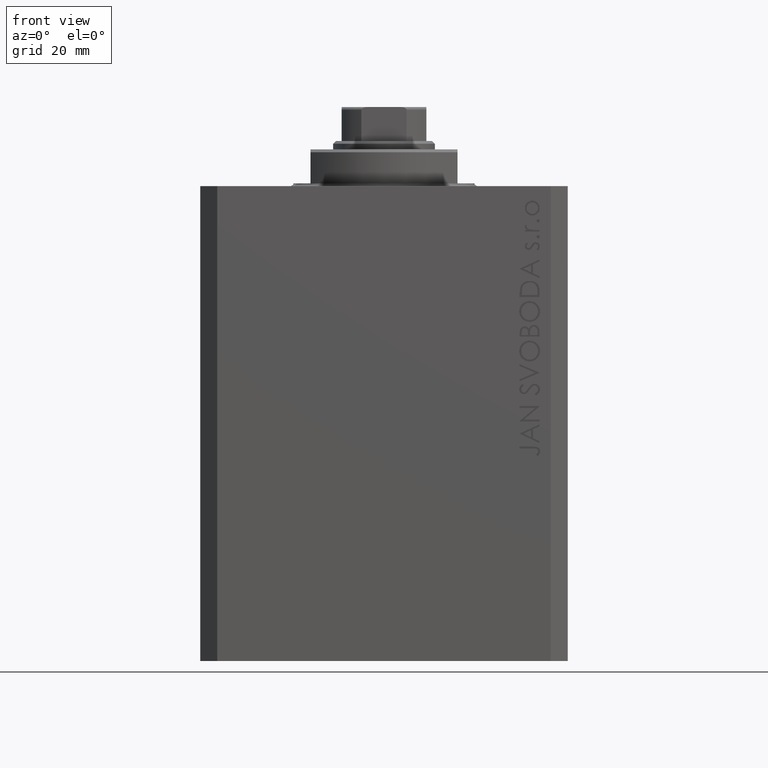
[diagram: clean part render]
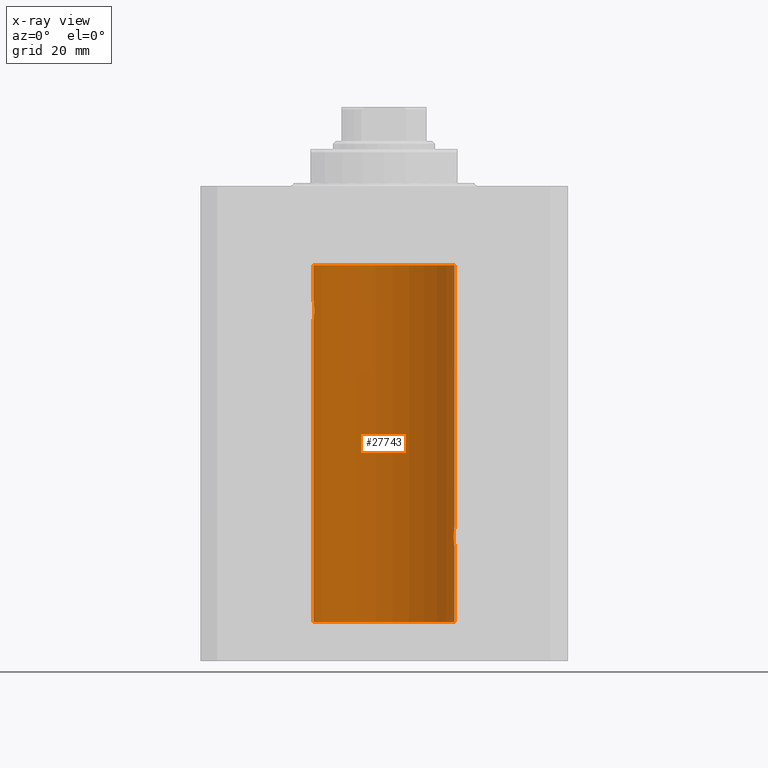
[diagram: x-ray — body ghosted, one internal face saturated and labeled with its STEP entity id]
A machine part, front view, then the same camera in x-ray: the body is ghosted and one INTERNAL B-rep face — a face not visible from any outside direction — is saturated and labeled: STEP entity #27743.
In plain terms, the highlighted cylindrical surface (partial cylindrical patch) has radius 12.5 mm, axis along (0, 0, 1).
Its self-contained STEP definition (entity closure, byte-faithful):
#355 = CARTESIAN_POINT ( 'NONE',  ( 0.000000000000000000, 0.000000000000000000, -77.09999999999999432 ) ) ;
#494 = CARTESIAN_POINT ( 'NONE',  ( 12.50000000000000000, -7.266276684081261841E-23, -60.00000000000000711 ) ) ;
#1062 = DIRECTION ( 'NONE',  ( 1.000000000000000000, 0.000000000000000000, 0.000000000000000000 ) ) ;
#1271 = CARTESIAN_POINT ( 'NONE',  ( -12.50000000000000000, 1.530808498934191521E-15, -77.09999999999999432 ) ) ;
#1353 = VECTOR ( 'NONE', #44842, 1000.000000000000000 ) ;
#1673 = ORIENTED_EDGE ( 'NONE', *, *, #29742, .T. ) ;
#2036 = CARTESIAN_POINT ( 'NONE',  ( -12.50000000000000000, 1.530808426276628993E-15, -23.99999999999999645 ) ) ;
#2439 = FACE_OUTER_BOUND ( 'NONE', #41216, .T. ) ;
#2846 = CARTESIAN_POINT ( 'NONE',  ( -12.35517291625592051, 1.897967064543089721, -22.64415233770293412 ) ) ;
#3084 = CARTESIAN_POINT ( 'NONE',  ( -12.48394649977302073, 0.6448065707253024526, -23.89773031393659153 ) ) ;
#3212 = CARTESIAN_POINT ( 'NONE',  ( 12.49789833780794446, 0.2625555164371027317, -63.98698170822147802 ) ) ;
#3450 = CARTESIAN_POINT ( 'NONE',  ( 12.43016561391612562, 1.322713721413883547, -63.50578877836701963 ) ) ;
#3692 = AXIS2_PLACEMENT_3D ( 'NONE', #355, #4176, #1062 ) ;
#4027 = VERTEX_POINT ( 'NONE', #38344 ) ;
#4176 = DIRECTION ( 'NONE',  ( 0.000000000000000000, 0.000000000000000000, 1.000000000000000000 ) ) ;
#4291 = VECTOR ( 'NONE', #46701, 1000.000000000000000 ) ;
#4625 = CARTESIAN_POINT ( 'NONE',  ( 12.50000000000000000, 0.000000000000000000, -77.09999999999999432 ) ) ;
#4627 = DIRECTION ( 'NONE',  ( -0.000000000000000000, -0.000000000000000000, 1.000000000000000000 ) ) ;
#6433 = CARTESIAN_POINT ( 'NONE',  ( -12.37764291807175354, 1.747608771958140794, -20.99316879552500481 ) ) ;
#6767 = B_SPLINE_CURVE_WITH_KNOTS ( 'NONE', 3,
 ( #8125, #18872, #33422, #19114, #7417, #15287, #21960, #11954, #26505, #32694, #29602, #7172, #33180, #29354, #29840, #36257, #26269, #494 ),
 .UNSPECIFIED., .F., .F.,
 ( 4, 2, 2, 2, 2, 2, 2, 2, 4 ),
 ( 0.003132244164174477138, 0.003523586189974253335, 0.003914928215774029531, 0.004306270241573805294, 0.004697612267373581924, 0.005088954293173358553, 0.005480296318973134316, 0.005871638344772910079, 0.006262980370572685841 ),
 .UNSPECIFIED. ) ;
#6803 = CARTESIAN_POINT ( 'NONE',  ( 12.50000000000000000, 1.905024688046704159E-15, -64.00000000000001421 ) ) ;
#6861 = CARTESIAN_POINT ( 'NONE',  ( 12.50000000000000000, 0.000000000000000000, -77.09999999999999432 ) ) ;
#6909 = CARTESIAN_POINT ( 'NONE',  ( -12.39864157855465088, 1.590288205413973532, -23.21980790594580313 ) ) ;
#7075 = ORIENTED_EDGE ( 'NONE', *, *, #45853, .F. ) ;
#7154 = CARTESIAN_POINT ( 'NONE',  ( -12.50000000000000533, 0.1306394121199390135, -24.00000000000000711 ) ) ;
#7172 = CARTESIAN_POINT ( 'NONE',  ( 12.46011632531799584, 1.003644408234891205, -60.26516799687671977 ) ) ;
#7417 = CARTESIAN_POINT ( 'NONE',  ( 12.35520276972935250, 1.897773362058245761, -61.35528278634336630 ) ) ;
#8125 = CARTESIAN_POINT ( 'NONE',  ( 12.33896267925302581, 2.000000000000254907, -62.00000000000000711 ) ) ;
#10111 = ORIENTED_EDGE ( 'NONE', *, *, #14505, .T. ) ;
#10259 = CARTESIAN_POINT ( 'NONE',  ( -12.46009879577771606, 1.003863686549169465, -23.73470742397611843 ) ) ;
#10954 = CARTESIAN_POINT ( 'NONE',  ( 12.50000000000000000, 1.905024688046704159E-15, -64.00000000000001421 ) ) ;
#11954 = CARTESIAN_POINT ( 'NONE',  ( 12.39867611624532451, 1.590019252152836682, -60.77984495929612052 ) ) ;
#12930 = CARTESIAN_POINT ( 'NONE',  ( -12.50000000000000000, 1.530808498934191521E-15, -13.99999999999999822 ) ) ;
#13605 = CARTESIAN_POINT ( 'NONE',  ( -12.46903010196599304, 0.8876934327478135378, -20.20300788371381984 ) ) ;
#13779 = LINE ( 'NONE', #6861, #46972 ) ;
#13821 = EDGE_CURVE ( 'NONE', #14287, #32121, #21653, .T. ) ;
#13828 = CARTESIAN_POINT ( 'NONE',  ( -12.44076681548080288, 1.220297236145718944, -23.58991408680628155 ) ) ;
#13957 = CARTESIAN_POINT ( 'NONE',  ( 12.46019522898365217, 1.002712894177338887, -63.73540896027601832 ) ) ;
#14064 = CARTESIAN_POINT ( 'NONE',  ( -12.48390768591463207, 0.6455696738844916016, -20.10252270298193977 ) ) ;
#14287 = VERTEX_POINT ( 'NONE', #22251 ) ;
#14505 = EDGE_CURVE ( 'NONE', #45910, #33460, #13779, .T. ) ;
#14604 = ORIENTED_EDGE ( 'NONE', *, *, #18407, .T. ) ;
#15287 = CARTESIAN_POINT ( 'NONE',  ( 12.37021546997940291, 1.797317011867410663, -61.11295119741077997 ) ) ;
#17642 = CARTESIAN_POINT ( 'NONE',  ( -12.48983485452574982, 0.5201193324741355539, -23.93561774521849372 ) ) ;
#17773 = CARTESIAN_POINT ( 'NONE',  ( 12.46901623405144655, 0.8878913781257908866, -63.79689651717551868 ) ) ;
#18016 = CARTESIAN_POINT ( 'NONE',  ( 12.33896267925302581, 2.000000000000254907, -62.00000000000000711 ) ) ;
#18084 = CARTESIAN_POINT ( 'NONE',  ( -12.50000000000000000, 1.530808498934191521E-15, -77.09999999999999432 ) ) ;
#18407 = EDGE_CURVE ( 'NONE', #43610, #43287, #22902, .T. ) ;
#18872 = CARTESIAN_POINT ( 'NONE',  ( 12.33896267925302759, 2.000000000000254907, -61.86934705949918367 ) ) ;
#19114 = CARTESIAN_POINT ( 'NONE',  ( 12.34924836377099844, 1.935649219704940194, -61.48002062127162048 ) ) ;
#19138 = VERTEX_POINT ( 'NONE', #41490 ) ;
#19176 = CIRCLE ( 'NONE', #45806, 12.50000000000000000 ) ;
#19831 = EDGE_CURVE ( 'NONE', #43610, #14287, #39470, .T. ) ;
#20243 = CARTESIAN_POINT ( 'NONE',  ( 12.48989642018887558, 0.5185418732824270682, -63.93601292187606333 ) ) ;
#20977 = CARTESIAN_POINT ( 'NONE',  ( -12.34781876294798053, 1.947190906025043633, -21.47436412829509678 ) ) ;
#21583 = CARTESIAN_POINT ( 'NONE',  ( 12.48390005916863110, 0.6457215011736545662, -63.89742771554267620 ) ) ;
#21653 = LINE ( 'NONE', #18084, #4291 ) ;
#21960 = CARTESIAN_POINT ( 'NONE',  ( 12.37925647381943506, 1.734744884174226121, -60.99620732598648942 ) ) ;
#22251 = CARTESIAN_POINT ( 'NONE',  ( -12.50000000000000000, 1.530808498934191521E-15, -77.09999999999999432 ) ) ;
#22420 = DIRECTION ( 'NONE',  ( 0.000000000000000000, 0.000000000000000000, 1.000000000000000000 ) ) ;
#22657 = DIRECTION ( 'NONE',  ( 1.000000000000000000, 0.000000000000000000, 0.000000000000000000 ) ) ;
#22686 = ORIENTED_EDGE ( 'NONE', *, *, #28998, .T. ) ;
#22884 = AXIS2_PLACEMENT_3D ( 'NONE', #39645, #46327, #22657 ) ;
#22902 = LINE ( 'NONE', #26942, #1353 ) ;
#24600 = CARTESIAN_POINT ( 'NONE',  ( 12.50000000000000000, -7.266276684081261841E-23, -60.00000000000000711 ) ) ;
#24750 = DIRECTION ( 'NONE',  ( -0.000000000000000000, -0.000000000000000000, 1.000000000000000000 ) ) ;
#25042 = CARTESIAN_POINT ( 'NONE',  ( -12.33897869807161385, 1.999901172190678089, -21.73788193668374547 ) ) ;
#26269 = CARTESIAN_POINT ( 'NONE',  ( 12.50000000000000178, 0.1306079576516677165, -60.00000000000000711 ) ) ;
#26478 = DIRECTION ( 'NONE',  ( 1.000000000000000000, 0.000000000000000000, 0.000000000000000000 ) ) ;
#26505 = CARTESIAN_POINT ( 'NONE',  ( 12.40916530024876785, 1.507117913375720653, -60.67865955049006743 ) ) ;
#26942 = CARTESIAN_POINT ( 'NONE',  ( 12.50000000000000000, 0.000000000000000000, -77.09999999999999432 ) ) ;
#27743 = ADVANCED_FACE ( 'NONE', ( #2439 ), #31542, .F. ) ;
#27832 = B_SPLINE_CURVE_WITH_KNOTS ( 'NONE', 3,
 ( #28603, #32425, #39824, #36239, #14064, #13605, #28144, #32677, #43637, #39107, #6433, #20977, #25042, #46987, #40066, #35527, #2846, #31952, #35760, #6909, #28841, #28367, #13828, #10259, #43394, #3084, #17642, #32182, #7154, #46745 ),
 .UNSPECIFIED., .F., .F.,
 ( 4, 2, 2, 2, 2, 2, 2, 2, 2, 2, 2, 2, 2, 2, 4 ),
 ( 1.814683826656258666E-20, 0.0003914362731607577369, 0.0007828725463215154739, 0.001174308819482273265, 0.001565745092643030948, 0.002348617638964546530, 0.003131490185286061895, 0.003522926458446825216, 0.003914362731607588103, 0.004305799004768351423, 0.004697235277929114744, 0.005088671551089878065, 0.005480107824250641385, 0.005871544097411404706, 0.006262980370572168026 ),
 .UNSPECIFIED. ) ;
#28144 = CARTESIAN_POINT ( 'NONE',  ( -12.46021263690096958, 1.002494658017156981, -20.26446744561863156 ) ) ;
#28367 = CARTESIAN_POINT ( 'NONE',  ( -12.43034574091277911, 1.321095788880539024, -23.50733550364322255 ) ) ;
#28432 = ORIENTED_EDGE ( 'NONE', *, *, #13821, .F. ) ;
#28603 = CARTESIAN_POINT ( 'NONE',  ( -12.50000000000000000, 1.867773856434666690E-17, -20.00000000000000000 ) ) ;
#28629 = VERTEX_POINT ( 'NONE', #12930 ) ;
#28841 = CARTESIAN_POINT ( 'NONE',  ( -12.40913174964213184, 1.507394620545641439, -23.32102833500698225 ) ) ;
#28998 = EDGE_CURVE ( 'NONE', #43287, #19138, #33591, .T. ) ;
#29354 = CARTESIAN_POINT ( 'NONE',  ( 12.48395395845270528, 0.6446573166014701872, -60.10222124213519379 ) ) ;
#29602 = CARTESIAN_POINT ( 'NONE',  ( 12.44079117518645461, 1.220047488436376337, -60.40989676335084368 ) ) ;
#29742 = EDGE_CURVE ( 'NONE', #19138, #45910, #6767, .T. ) ;
#29840 = CARTESIAN_POINT ( 'NONE',  ( 12.48983962833819206, 0.5199974825204910500, -60.06435160808018736 ) ) ;
#30381 = CARTESIAN_POINT ( 'NONE',  ( 12.50000000000000000, 0.000000000000000000, -13.99999999999999822 ) ) ;
#30742 = CARTESIAN_POINT ( 'NONE',  ( 0.000000000000000000, 0.000000000000000000, -13.99999999999999822 ) ) ;
#31542 = CYLINDRICAL_SURFACE ( 'NONE', #22884, 12.50000000000000000 ) ;
#31849 = EDGE_CURVE ( 'NONE', #33460, #28629, #19176, .T. ) ;
#31952 = CARTESIAN_POINT ( 'NONE',  ( -12.37018026341338839, 1.797558627508998086, -22.88656313533016373 ) ) ;
#32121 = VERTEX_POINT ( 'NONE', #2036 ) ;
#32182 = CARTESIAN_POINT ( 'NONE',  ( -12.49788564268284041, 0.2633501011236127343, -23.98690384766255335 ) ) ;
#32425 = CARTESIAN_POINT ( 'NONE',  ( -12.50000000000000000, 0.1323736289504353625, -20.00000000000000000 ) ) ;
#32677 = CARTESIAN_POINT ( 'NONE',  ( -12.44082361696003503, 1.219754986802281449, -20.40963319990594016 ) ) ;
#32694 = CARTESIAN_POINT ( 'NONE',  ( 12.43037348241797879, 1.320834183883841773, -60.49243837704294435 ) ) ;
#33180 = CARTESIAN_POINT ( 'NONE',  ( 12.46910683544638054, 0.8866026273585047024, -60.20247863689692736 ) ) ;
#33422 = CARTESIAN_POINT ( 'NONE',  ( 12.34110728646152388, 1.986893050944461336, -61.73661347764981855 ) ) ;
#33460 = VERTEX_POINT ( 'NONE', #30381 ) ;
#33495 = LINE ( 'NONE', #1271, #37815 ) ;
#33591 = B_SPLINE_CURVE_WITH_KNOTS ( 'NONE', 3,
 ( #6803, #35889, #3212, #20243, #21583, #17773, #13957, #39956, #3450, #36130, #46876, #34793, #45763, #18016 ),
 .UNSPECIFIED., .F., .F.,
 ( 4, 2, 2, 2, 2, 2, 4 ),
 ( 1.850875832140809093E-18, 0.0003915305205218040587, 0.0007830610410436062742, 0.001174591561565408761, 0.001566122082087210814, 0.002349183123130843542, 0.003132244164174477138 ),
 .UNSPECIFIED. ) ;
#34679 = ORIENTED_EDGE ( 'NONE', *, *, #47203, .T. ) ;
#34793 = CARTESIAN_POINT ( 'NONE',  ( 12.34779119491631505, 1.947363444907019847, -62.52502775168252214 ) ) ;
#35527 = CARTESIAN_POINT ( 'NONE',  ( -12.34922241902463114, 1.935814255713574239, -22.51937350851555308 ) ) ;
#35760 = CARTESIAN_POINT ( 'NONE',  ( -12.37922086519035325, 1.734998657226764829, -23.00335814299181436 ) ) ;
#35889 = CARTESIAN_POINT ( 'NONE',  ( 12.50000000000000178, 0.1324055009716470777, -64.00000000000001421 ) ) ;
#36106 = ORIENTED_EDGE ( 'NONE', *, *, #19831, .F. ) ;
#36130 = CARTESIAN_POINT ( 'NONE',  ( 12.39869754437268767, 1.598954131913727261, -63.22932152813014284 ) ) ;
#36239 = CARTESIAN_POINT ( 'NONE',  ( -12.48990118705761532, 0.5184196815546056047, -20.06395648222637007 ) ) ;
#36257 = CARTESIAN_POINT ( 'NONE',  ( 12.49788668346399945, 0.2632864803365704276, -60.01308975838333737 ) ) ;
#37815 = VECTOR ( 'NONE', #4627, 1000.000000000000000 ) ;
#38344 = CARTESIAN_POINT ( 'NONE',  ( -12.50000000000000000, 1.867773856434666690E-17, -20.00000000000000000 ) ) ;
#39107 = CARTESIAN_POINT ( 'NONE',  ( -12.39873273758732175, 1.598680238462371062, -20.77033506126851137 ) ) ;
#39470 = CIRCLE ( 'NONE', #3692, 12.50000000000000000 ) ;
#39645 = CARTESIAN_POINT ( 'NONE',  ( 0.000000000000000000, 0.000000000000000000, -77.09999999999999432 ) ) ;
#39824 = CARTESIAN_POINT ( 'NONE',  ( -12.49789934882883458, 0.2624928479599910047, -20.01301208516349917 ) ) ;
#39956 = CARTESIAN_POINT ( 'NONE',  ( 12.44079900692650753, 1.220007525301743279, -63.59017579083667471 ) ) ;
#40066 = CARTESIAN_POINT ( 'NONE',  ( -12.34109209020652465, 1.986986967296539897, -22.26269462454597914 ) ) ;
#41216 = EDGE_LOOP ( 'NONE', ( #28432, #36106, #14604, #22686, #1673, #10111, #41558, #7075, #34679 ) ) ;
#41490 = CARTESIAN_POINT ( 'NONE',  ( 12.33896267925302581, 2.000000000000254907, -62.00000000000000711 ) ) ;
#41558 = ORIENTED_EDGE ( 'NONE', *, *, #31849, .T. ) ;
#43287 = VERTEX_POINT ( 'NONE', #10954 ) ;
#43394 = CARTESIAN_POINT ( 'NONE',  ( -12.46909283808506430, 0.8868029758979402155, -23.79742491916155345 ) ) ;
#43610 = VERTEX_POINT ( 'NONE', #4625 ) ;
#43637 = CARTESIAN_POINT ( 'NONE',  ( -12.43019346654084956, 1.322451657002078340, -20.49398366327208620 ) ) ;
#44842 = DIRECTION ( 'NONE',  ( -0.000000000000000000, -0.000000000000000000, 1.000000000000000000 ) ) ;
#45763 = CARTESIAN_POINT ( 'NONE',  ( 12.33896267925302404, 2.000000000000255795, -62.26143174220787557 ) ) ;
#45806 = AXIS2_PLACEMENT_3D ( 'NONE', #30742, #22420, #26478 ) ;
#45853 = EDGE_CURVE ( 'NONE', #4027, #28629, #33495, .T. ) ;
#45910 = VERTEX_POINT ( 'NONE', #24600 ) ;
#46327 = DIRECTION ( 'NONE',  ( -0.000000000000000000, -0.000000000000000000, 1.000000000000000000 ) ) ;
#46701 = DIRECTION ( 'NONE',  ( -0.000000000000000000, -0.000000000000000000, 1.000000000000000000 ) ) ;
#46745 = CARTESIAN_POINT ( 'NONE',  ( -12.50000000000000000, 1.530808426276628993E-15, -23.99999999999999645 ) ) ;
#46876 = CARTESIAN_POINT ( 'NONE',  ( 12.37760587642916299, 1.747868572747730997, -63.00639653169000098 ) ) ;
#46972 = VECTOR ( 'NONE', #24750, 1000.000000000000000 ) ;
#46987 = CARTESIAN_POINT ( 'NONE',  ( -12.33895470450623044, 2.000049200055401766, -22.12992629360264729 ) ) ;
#47203 = EDGE_CURVE ( 'NONE', #4027, #32121, #27832, .T. ) ;